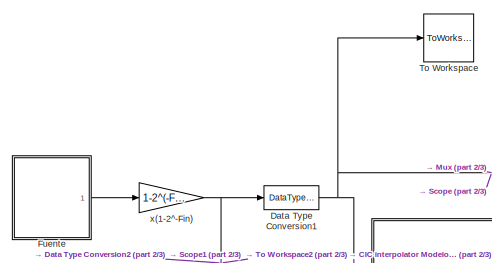
[diagram: root canvas - part 1/3, top left region]
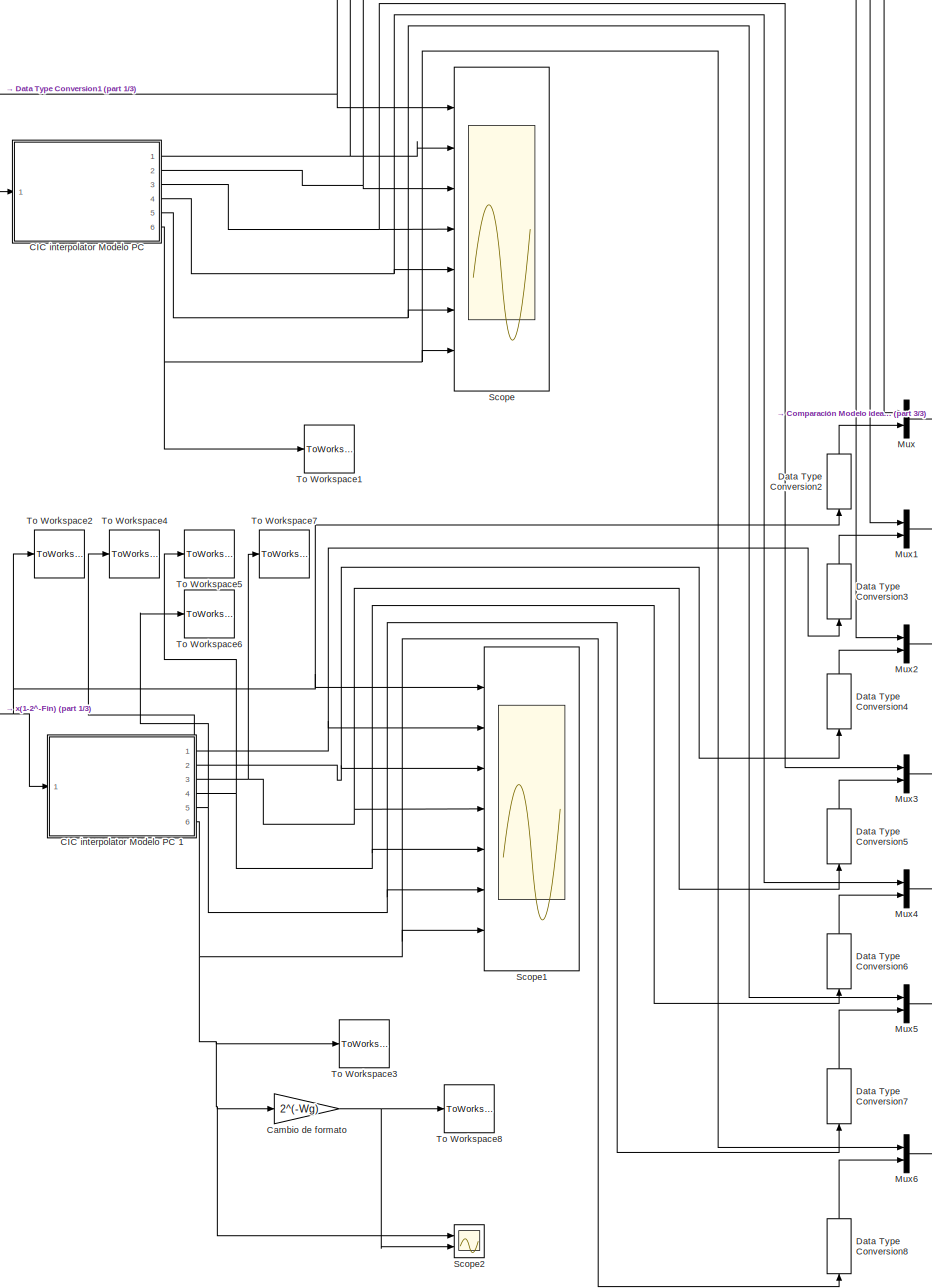
[diagram: root canvas - part 2/3, center side, full height]
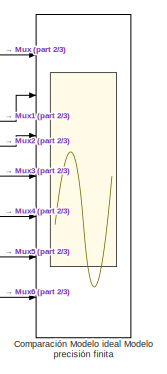
[diagram: root canvas - part 3/3, middle right region]
MODEL slx_17cbe9b01c15
KIND model
CONFIG AbsTol = auto
CONFIG EnableMultiTasking = on
CONFIG FixedStep = auto
CONFIG MaxStep = auto
CONFIG MinStep = auto
CONFIG RelTol = 1e-3
CONFIG SampleTimeConstraint = Unconstrained
CONFIG SolverName = ode45
CONFIG StartTime = 0.0
CONFIG StopTime = Tsim
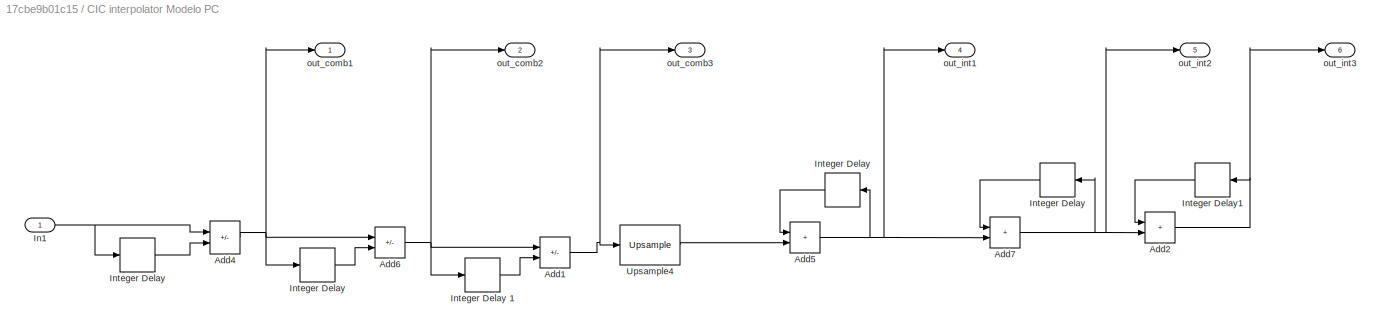
BLOCK [SubSystem] CIC interpolator Modelo PC 
  Ports = [1, 6]
  RequestExecContextInheritance = off
BLOCK [Delay] CIC interpolator Modelo PC / Integer Delay
  DelayLength = 1
  InputPortMap = u0
  Ports = [1, 1]
  UserDataPersistent = on
BLOCK [Delay] CIC interpolator Modelo PC / Integer Delay1
  DelayLength = 1
  InputPortMap = u0
  Ports = [1, 1]
  UserDataPersistent = on
BLOCK [Sum] CIC interpolator Modelo PC /Add1
  IconShape = rectangular
  Inputs = +-
  Ports = [2, 1]
BLOCK [Sum] CIC interpolator Modelo PC /Add2
  IconShape = rectangular
  Ports = [2, 1]
BLOCK [Sum] CIC interpolator Modelo PC /Add4
  IconShape = rectangular
  Inputs = +-
  Ports = [2, 1]
BLOCK [Sum] CIC interpolator Modelo PC /Add5
  IconShape = rectangular
  Ports = [2, 1]
BLOCK [Sum] CIC interpolator Modelo PC /Add6
  IconShape = rectangular
  Inputs = +-
  Ports = [2, 1]
BLOCK [Sum] CIC interpolator Modelo PC /Add7
  IconShape = rectangular
  Ports = [2, 1]
BLOCK [Inport] CIC interpolator Modelo PC /In1
BLOCK [Delay] CIC interpolator Modelo PC /Integer Delay 
  DelayLength = M
  InputPortMap = u0
  Ports = [1, 1]
  UserDataPersistent = on
BLOCK [Delay] CIC interpolator Modelo PC /Integer Delay  
  DelayLength = M
  InputPortMap = u0
  Ports = [1, 1]
  UserDataPersistent = on
BLOCK [Delay] CIC interpolator Modelo PC /Integer Delay  1
  DelayLength = M
  InputPortMap = u0
  Ports = [1, 1]
  UserDataPersistent = on
BLOCK [Reference] CIC interpolator Modelo PC /Upsample4  REF=dspsigops/Upsample
  Ports = [1, 1]
  SourceBlock = dspsigops/Upsample
  SourceProductBaseCode = DS
  SourceType = Upsample
  UserDataPersistent = on
BLOCK [Outport] CIC interpolator Modelo PC /out_comb1
  VectorParamsAs1DForOutWhenUnconnected = off
BLOCK [Outport] CIC interpolator Modelo PC /out_comb2
  Port = 2
  VectorParamsAs1DForOutWhenUnconnected = off
BLOCK [Outport] CIC interpolator Modelo PC /out_comb3
  Port = 3
  VectorParamsAs1DForOutWhenUnconnected = off
BLOCK [Outport] CIC interpolator Modelo PC /out_int1
  Port = 4
  VectorParamsAs1DForOutWhenUnconnected = off
BLOCK [Outport] CIC interpolator Modelo PC /out_int2
  Port = 5
  VectorParamsAs1DForOutWhenUnconnected = off
BLOCK [Outport] CIC interpolator Modelo PC /out_int3
  Port = 6
  VectorParamsAs1DForOutWhenUnconnected = off
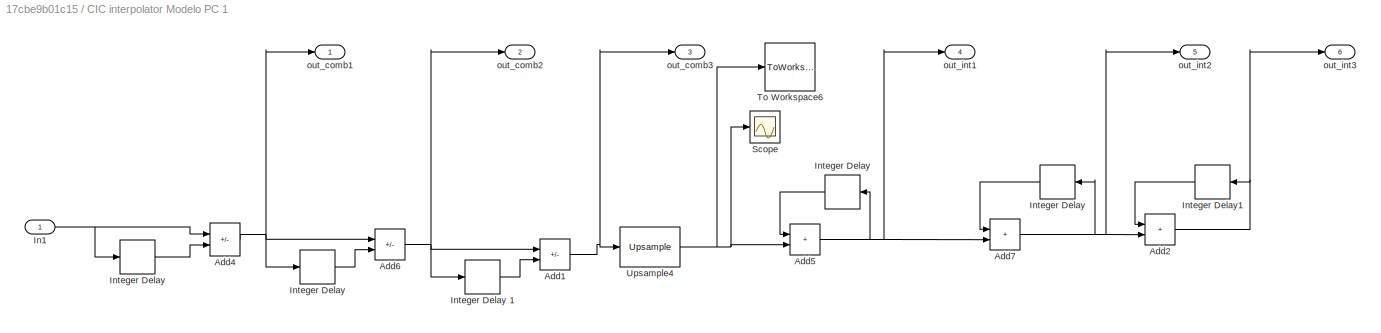
BLOCK [SubSystem] CIC interpolator Modelo PC 1
  Ports = [1, 6]
  RequestExecContextInheritance = off
BLOCK [Delay] CIC interpolator Modelo PC 1/ Integer Delay
  DelayLength = 1
  InputPortMap = u0
  Ports = [1, 1]
  UserDataPersistent = on
BLOCK [Delay] CIC interpolator Modelo PC 1/ Integer Delay1
  DelayLength = 1
  InputPortMap = u0
  Ports = [1, 1]
  UserDataPersistent = on
BLOCK [Sum] CIC interpolator Modelo PC 1/Add1
  IconShape = rectangular
  Inputs = +-
  OutDataTypeStr = fixdt(1,19,15)
  Ports = [2, 1]
BLOCK [Sum] CIC interpolator Modelo PC 1/Add2
  IconShape = rectangular
  OutDataTypeStr = fixdt(1,38,15)
  Ports = [2, 1]
BLOCK [Sum] CIC interpolator Modelo PC 1/Add4
  IconShape = rectangular
  Inputs = +-
  OutDataTypeStr = fixdt(1,17,15)
  Ports = [2, 1]
BLOCK [Sum] CIC interpolator Modelo PC 1/Add5
  IconShape = rectangular
  OutDataTypeStr = fixdt(1,38,15)
  Ports = [2, 1]
BLOCK [Sum] CIC interpolator Modelo PC 1/Add6
  IconShape = rectangular
  Inputs = +-
  OutDataTypeStr = fixdt(1,18,15)
  Ports = [2, 1]
BLOCK [Sum] CIC interpolator Modelo PC 1/Add7
  IconShape = rectangular
  OutDataTypeStr = fixdt(1,38,15)
  Ports = [2, 1]
BLOCK [Inport] CIC interpolator Modelo PC 1/In1
BLOCK [Delay] CIC interpolator Modelo PC 1/Integer Delay 
  DelayLength = M
  InputPortMap = u0
  Ports = [1, 1]
  UserDataPersistent = on
BLOCK [Delay] CIC interpolator Modelo PC 1/Integer Delay  
  DelayLength = M
  InputPortMap = u0
  Ports = [1, 1]
  UserDataPersistent = on
BLOCK [Delay] CIC interpolator Modelo PC 1/Integer Delay  1
  DelayLength = M
  InputPortMap = u0
  Ports = [1, 1]
  UserDataPersistent = on
BLOCK [Scope] CIC interpolator Modelo PC 1/Scope
  Floating = off
  NumInputPorts = 1
  Ports = [1]
  ScopeSpecificationString = Simulink.scopes.TimeScopeBlockCfg('CurrentConfiguration', extmgr.ConfigurationSet(extmgr.Configuration('Core','General UI',true),extmgr.Configuration('Core','Source UI',true),extmgr.Configuration('Sources','WiredSimulink',true,'DataLoggingVariableName','ScopeData1'),extmgr.Configuration('Visuals','Time Domain',true,'SerializedDisplays',{struct('MinYLimReal','-2.75154','MaxYLimReal','2.11067','YLab...<+1397ch>
BLOCK [ToWorkspace] CIC interpolator Modelo PC 1/To Workspace6
  MaxDataPoints = inf
  Ports = [1]
  SampleTime = -1
  Save2DSignal = 2-D array (concatenate along first dimension)
  VariableName = out_r_int
BLOCK [Reference] CIC interpolator Modelo PC 1/Upsample4  REF=dspsigops/Upsample
  Ports = [1, 1]
  SourceBlock = dspsigops/Upsample
  SourceProductBaseCode = DS
  SourceType = Upsample
  UserDataPersistent = on
BLOCK [Outport] CIC interpolator Modelo PC 1/out_comb1
  VectorParamsAs1DForOutWhenUnconnected = off
BLOCK [Outport] CIC interpolator Modelo PC 1/out_comb2
  Port = 2
  VectorParamsAs1DForOutWhenUnconnected = off
BLOCK [Outport] CIC interpolator Modelo PC 1/out_comb3
  Port = 3
  VectorParamsAs1DForOutWhenUnconnected = off
BLOCK [Outport] CIC interpolator Modelo PC 1/out_int1
  Port = 4
  VectorParamsAs1DForOutWhenUnconnected = off
BLOCK [Outport] CIC interpolator Modelo PC 1/out_int2
  Port = 5
  VectorParamsAs1DForOutWhenUnconnected = off
BLOCK [Outport] CIC interpolator Modelo PC 1/out_int3
  Port = 6
  VectorParamsAs1DForOutWhenUnconnected = off
BLOCK [Gain] Cambio de formato
  Gain = 2^(-Wg)
  OutDataTypeStr = fixdt(1,16,15)
BLOCK [Scope] Comparación Modelo ideal Modelo precisión finita 
  Floating = off
  NumInputPorts = 7
  Ports = [7]
  ScopeSpecificationString = Simulink.scopes.TimeScopeBlockCfg('CurrentConfiguration', extmgr.ConfigurationSet(extmgr.Configuration('Core','General UI',true),extmgr.Configuration('Core','Source UI',true),extmgr.Configuration('Sources','WiredSimulink',true,'DataLoggingVariableName','ScopeData3'),extmgr.Configuration('Visuals','Time Domain',true,'SerializedDisplays',{struct('MinYLimReal','-1.18881','MaxYLimReal','1.18878','YLab...<+6616ch>
BLOCK [DataTypeConversion] Data Type Conversion1
  OutDataTypeStr = double
  RndMeth = Floor
  SaturateOnIntegerOverflow = off
BLOCK [DataTypeConversion] Data Type Conversion2
  NameLocation = right
  OutDataTypeStr = double
  RndMeth = Floor
  SaturateOnIntegerOverflow = off
BLOCK [DataTypeConversion] Data Type Conversion3
  NameLocation = right
  OutDataTypeStr = double
  RndMeth = Floor
  SaturateOnIntegerOverflow = off
BLOCK [DataTypeConversion] Data Type Conversion4
  NameLocation = right
  OutDataTypeStr = double
  RndMeth = Floor
  SaturateOnIntegerOverflow = off
BLOCK [DataTypeConversion] Data Type Conversion5
  NameLocation = right
  OutDataTypeStr = double
  RndMeth = Floor
  SaturateOnIntegerOverflow = off
BLOCK [DataTypeConversion] Data Type Conversion6
  NameLocation = right
  OutDataTypeStr = double
  RndMeth = Floor
  SaturateOnIntegerOverflow = off
BLOCK [DataTypeConversion] Data Type Conversion7
  NameLocation = right
  OutDataTypeStr = double
  RndMeth = Floor
  SaturateOnIntegerOverflow = off
BLOCK [DataTypeConversion] Data Type Conversion8
  NameLocation = right
  OutDataTypeStr = double
  RndMeth = Floor
  SaturateOnIntegerOverflow = off
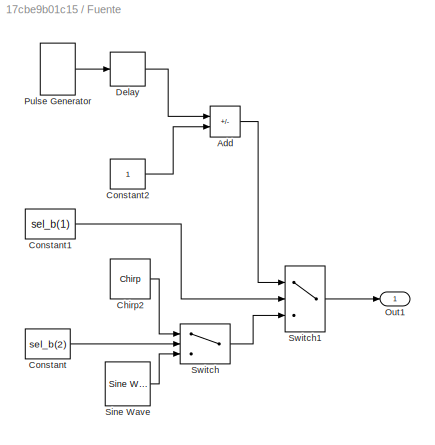
BLOCK [SubSystem] Fuente
  Ports = [0, 1]
  RequestExecContextInheritance = off
BLOCK [Sum] Fuente/Add
  IconShape = rectangular
  Inputs = +-
  Ports = [2, 1]
BLOCK [Reference] Fuente/Chirp2  REF=dspsrcs4/Chirp
  Ports = [0, 1]
  SourceBlock = dspsrcs4/Chirp
  SourceProductBaseCode = DS
  SourceType = Chirp
BLOCK [Constant] Fuente/Constant
  Value = sel_b(2)
BLOCK [Constant] Fuente/Constant1
  Value = sel_b(1)
BLOCK [Constant] Fuente/Constant2
BLOCK [Delay] Fuente/Delay
  DelayLength = 1
  InitialCondition = 0
  InputPortMap = u0
  Ports = [1, 1]
  SampleTime = 1/(fsL*1000)
BLOCK [Outport] Fuente/Out1
  VectorParamsAs1DForOutWhenUnconnected = off
BLOCK [DiscretePulseGenerator] Fuente/Pulse Generator
  Amplitude = 2
  Period = 1/(fo*1000)
  Ports = [0, 1]
  PulseType = Time based
  PulseWidth = 50
  SampleTime = 1/(fsL*1000)
BLOCK [Reference] Fuente/Sine Wave  REF=dspsrcs4/Sine Wave
  Ports = [0, 1]
  SourceBlock = dspsrcs4/Sine Wave
  SourceProductBaseCode = DS
  SourceType = Sine Wave
BLOCK [Switch] Fuente/Switch
  Criteria = u2 > Threshold
  InputSameDT = off
  SaturateOnIntegerOverflow = off
BLOCK [Switch] Fuente/Switch1
  Criteria = u2 > Threshold
  InputSameDT = off
  SaturateOnIntegerOverflow = off
BLOCK [Mux] Mux
  DisplayOption = bar
  Inputs = 2
  Ports = [2, 1]
BLOCK [Mux] Mux1
  DisplayOption = bar
  Inputs = 2
  Ports = [2, 1]
BLOCK [Mux] Mux2
  DisplayOption = bar
  Inputs = 2
  Ports = [2, 1]
BLOCK [Mux] Mux3
  DisplayOption = bar
  Inputs = 2
  Ports = [2, 1]
BLOCK [Mux] Mux4
  DisplayOption = bar
  Inputs = 2
  Ports = [2, 1]
BLOCK [Mux] Mux5
  DisplayOption = bar
  Inputs = 2
  Ports = [2, 1]
BLOCK [Mux] Mux6
  DisplayOption = bar
  Inputs = 2
  Ports = [2, 1]
BLOCK [Scope] Scope
  Floating = off
  NumInputPorts = 7
  Ports = [7]
  ScopeSpecificationString = Simulink.scopes.TimeScopeBlockCfg('CurrentConfiguration', extmgr.ConfigurationSet(extmgr.Configuration('Core','General UI',true),extmgr.Configuration('Core','Source UI',true),extmgr.Configuration('Sources','WiredSimulink',true),extmgr.Configuration('Visuals','Time Domain',true,'SerializedDisplays',{struct('MinYLimReal','-1.18881','MaxYLimReal','1.18878','YLabelReal','','MinYLimMag','0.00000','MaxY...<+6409ch>
BLOCK [Scope] Scope1
  Floating = off
  NumInputPorts = 7
  Ports = [7]
  ScopeSpecificationString = Simulink.scopes.TimeScopeBlockCfg('CurrentConfiguration', extmgr.ConfigurationSet(extmgr.Configuration('Core','General UI',true),extmgr.Configuration('Core','Source UI',true),extmgr.Configuration('Sources','WiredSimulink',true,'DataLoggingVariableName','ScopeData1'),extmgr.Configuration('Visuals','Time Domain',true,'SerializedDisplays',{struct('MinYLimReal','-1.24996','MaxYLimReal','1.24996','YLab...<+6445ch>
BLOCK [Scope] Scope2
  Floating = off
  NumInputPorts = 2
  Ports = [2]
  ScopeSpecificationString = Simulink.scopes.TimeScopeBlockCfg('CurrentConfiguration', extmgr.ConfigurationSet(extmgr.Configuration('Core','General UI',true),extmgr.Configuration('Core','Source UI',true),extmgr.Configuration('Sources','WiredSimulink',true,'DataLoggingVariableName','ScopeData1'),extmgr.Configuration('Visuals','Time Domain',true,'SerializedDisplays',{struct('MinYLimReal','-1.86807','MaxYLimReal','1.38824','YLab...<+1484ch>
BLOCK [ToWorkspace] To Workspace
  MaxDataPoints = inf
  Ports = [1]
  SampleTime = -1
  Save2DSignal = 2-D array (concatenate along first dimension)
  VariableName = s_in
BLOCK [ToWorkspace] To Workspace1
  MaxDataPoints = inf
  Ports = [1]
  SampleTime = -1
  Save2DSignal = 2-D array (concatenate along first dimension)
  VariableName = s_out
BLOCK [ToWorkspace] To Workspace2
  MaxDataPoints = inf
  Ports = [1]
  SampleTime = -1
  Save2DSignal = 2-D array (concatenate along first dimension)
  VariableName = s_in1
BLOCK [ToWorkspace] To Workspace3
  MaxDataPoints = inf
  Ports = [1]
  SampleTime = -1
  Save2DSignal = 2-D array (concatenate along first dimension)
  VariableName = s_out1
BLOCK [ToWorkspace] To Workspace4
  MaxDataPoints = inf
  Ports = [1]
  SampleTime = -1
  Save2DSignal = 2-D array (concatenate along first dimension)
  VariableName = out_comb1
BLOCK [ToWorkspace] To Workspace5
  MaxDataPoints = inf
  Ports = [1]
  SampleTime = -1
  Save2DSignal = 2-D array (concatenate along first dimension)
  VariableName = out_int1
BLOCK [ToWorkspace] To Workspace6
  MaxDataPoints = inf
  Ports = [1]
  SampleTime = -1
  Save2DSignal = 2-D array (concatenate along first dimension)
  VariableName = out_int2
BLOCK [ToWorkspace] To Workspace7
  MaxDataPoints = inf
  Ports = [1]
  SampleTime = -1
  Save2DSignal = 2-D array (concatenate along first dimension)
  VariableName = out_comb3
BLOCK [ToWorkspace] To Workspace8
  MaxDataPoints = inf
  Ports = [1]
  SampleTime = -1
  Save2DSignal = 2-D array (concatenate along first dimension)
  VariableName = s_out2
BLOCK [Gain] x(1-2^-Fin)
  Gain = 1-2^(-Fin)
  OutDataTypeStr = fixdt(1,Win,Fin)
LINE CIC interpolator Modelo PC / Integer Delay1:1 -> CIC interpolator Modelo PC /Add2:1
LINE CIC interpolator Modelo PC / Integer Delay:1 -> CIC interpolator Modelo PC /Add7:1
NET CIC interpolator Modelo PC /Add1:1 -> CIC interpolator Modelo PC /Upsample4:1, CIC interpolator Modelo PC /out_comb3:1
NET CIC interpolator Modelo PC /Add2:1 -> CIC interpolator Modelo PC / Integer Delay1:1, CIC interpolator Modelo PC /out_int3:1
NET CIC interpolator Modelo PC /Add4:1 -> CIC interpolator Modelo PC /Add6:1, CIC interpolator Modelo PC /Integer Delay  :1, CIC interpolator Modelo PC /out_comb1:1
NET CIC interpolator Modelo PC /Add5:1 -> CIC interpolator Modelo PC /Add7:2, CIC interpolator Modelo PC /Integer Delay :1, CIC interpolator Modelo PC /out_int1:1
NET CIC interpolator Modelo PC /Add6:1 -> CIC interpolator Modelo PC /Add1:1, CIC interpolator Modelo PC /Integer Delay  1:1, CIC interpolator Modelo PC /out_comb2:1
NET CIC interpolator Modelo PC /Add7:1 -> CIC interpolator Modelo PC / Integer Delay:1, CIC interpolator Modelo PC /Add2:2, CIC interpolator Modelo PC /out_int2:1
NET CIC interpolator Modelo PC /In1:1 -> CIC interpolator Modelo PC /Add4:1, CIC interpolator Modelo PC /Integer Delay :1
LINE CIC interpolator Modelo PC /Integer Delay  1:1 -> CIC interpolator Modelo PC /Add1:2
LINE CIC interpolator Modelo PC /Integer Delay  :1 -> CIC interpolator Modelo PC /Add6:2
NET CIC interpolator Modelo PC /Integer Delay :1 -> CIC interpolator Modelo PC /Add4:2, CIC interpolator Modelo PC /Add5:1
LINE CIC interpolator Modelo PC /Upsample4:1 -> CIC interpolator Modelo PC /Add5:2
LINE CIC interpolator Modelo PC 1/ Integer Delay1:1 -> CIC interpolator Modelo PC 1/Add2:1
LINE CIC interpolator Modelo PC 1/ Integer Delay:1 -> CIC interpolator Modelo PC 1/Add7:1
NET CIC interpolator Modelo PC 1/Add1:1 -> CIC interpolator Modelo PC 1/Upsample4:1, CIC interpolator Modelo PC 1/out_comb3:1
NET CIC interpolator Modelo PC 1/Add2:1 -> CIC interpolator Modelo PC 1/ Integer Delay1:1, CIC interpolator Modelo PC 1/out_int3:1
NET CIC interpolator Modelo PC 1/Add4:1 -> CIC interpolator Modelo PC 1/Add6:1, CIC interpolator Modelo PC 1/Integer Delay  :1, CIC interpolator Modelo PC 1/out_comb1:1
NET CIC interpolator Modelo PC 1/Add5:1 -> CIC interpolator Modelo PC 1/Add7:2, CIC interpolator Modelo PC 1/Integer Delay :1, CIC interpolator Modelo PC 1/out_int1:1
NET CIC interpolator Modelo PC 1/Add6:1 -> CIC interpolator Modelo PC 1/Add1:1, CIC interpolator Modelo PC 1/Integer Delay  1:1, CIC interpolator Modelo PC 1/out_comb2:1
NET CIC interpolator Modelo PC 1/Add7:1 -> CIC interpolator Modelo PC 1/ Integer Delay:1, CIC interpolator Modelo PC 1/Add2:2, CIC interpolator Modelo PC 1/out_int2:1
NET CIC interpolator Modelo PC 1/In1:1 -> CIC interpolator Modelo PC 1/Add4:1, CIC interpolator Modelo PC 1/Integer Delay :1
LINE CIC interpolator Modelo PC 1/Integer Delay  1:1 -> CIC interpolator Modelo PC 1/Add1:2
LINE CIC interpolator Modelo PC 1/Integer Delay  :1 -> CIC interpolator Modelo PC 1/Add6:2
NET CIC interpolator Modelo PC 1/Integer Delay :1 -> CIC interpolator Modelo PC 1/Add4:2, CIC interpolator Modelo PC 1/Add5:1
NET CIC interpolator Modelo PC 1/Upsample4:1 -> CIC interpolator Modelo PC 1/Add5:2, CIC interpolator Modelo PC 1/Scope:1, CIC interpolator Modelo PC 1/To Workspace6:1
NET CIC interpolator Modelo PC 1:1 -> Data Type Conversion3:1, Scope1:2, To Workspace4:1
NET CIC interpolator Modelo PC 1:2 -> Data Type Conversion4:1, Scope1:3
NET CIC interpolator Modelo PC 1:3 -> Data Type Conversion5:1, Scope1:4, To Workspace7:1
NET CIC interpolator Modelo PC 1:4 -> Data Type Conversion6:1, Scope1:5, To Workspace5:1
NET CIC interpolator Modelo PC 1:5 -> Data Type Conversion7:1, Scope1:6, To Workspace6:1
NET CIC interpolator Modelo PC 1:6 -> Cambio de formato:1, Data Type Conversion8:1, Scope1:7, Scope2:1, To Workspace3:1
NET CIC interpolator Modelo PC :1 -> Mux1:1, Scope:2
NET CIC interpolator Modelo PC :2 -> Mux2:1, Scope:3
NET CIC interpolator Modelo PC :3 -> Mux3:1, Scope:4
NET CIC interpolator Modelo PC :4 -> Mux4:1, Scope:5
NET CIC interpolator Modelo PC :5 -> Mux5:1, Scope:6
NET CIC interpolator Modelo PC :6 -> Mux6:1, Scope:7, To Workspace1:1
NET Cambio de formato:1 -> Scope2:2, To Workspace8:1
NET Data Type Conversion1:1 -> CIC interpolator Modelo PC :1, Mux:1, Scope:1, To Workspace:1
LINE Data Type Conversion2:1 -> Mux:2
LINE Data Type Conversion3:1 -> Mux1:2
LINE Data Type Conversion4:1 -> Mux2:2
LINE Data Type Conversion5:1 -> Mux3:2
LINE Data Type Conversion6:1 -> Mux4:2
LINE Data Type Conversion7:1 -> Mux5:2
LINE Data Type Conversion8:1 -> Mux6:2
LINE Fuente/Add:1 -> Fuente/Switch1:1
LINE Fuente/Chirp2:1 -> Fuente/Switch:1
LINE Fuente/Constant1:1 -> Fuente/Switch1:2
LINE Fuente/Constant2:1 -> Fuente/Add:2
LINE Fuente/Constant:1 -> Fuente/Switch:2
LINE Fuente/Delay:1 -> Fuente/Add:1
LINE Fuente/Pulse Generator:1 -> Fuente/Delay:1
LINE Fuente/Sine Wave:1 -> Fuente/Switch:3
LINE Fuente/Switch1:1 -> Fuente/Out1:1
LINE Fuente/Switch:1 -> Fuente/Switch1:3
LINE Fuente:1 -> x(1-2^-Fin):1
LINE Mux1:1 -> Comparación Modelo ideal Modelo precisión finita :2
LINE Mux2:1 -> Comparación Modelo ideal Modelo precisión finita :3
LINE Mux3:1 -> Comparación Modelo ideal Modelo precisión finita :4
LINE Mux4:1 -> Comparación Modelo ideal Modelo precisión finita :5
LINE Mux5:1 -> Comparación Modelo ideal Modelo precisión finita :6
LINE Mux6:1 -> Comparación Modelo ideal Modelo precisión finita :7
LINE Mux:1 -> Comparación Modelo ideal Modelo precisión finita :1
NET x(1-2^-Fin):1 -> CIC interpolator Modelo PC 1:1, Data Type Conversion1:1, Data Type Conversion2:1, Scope1:1, To Workspace2:1
note: NET lines group one-source signal fan-out (src -> all destinations, sorted); 1:1 wires keep LINE
